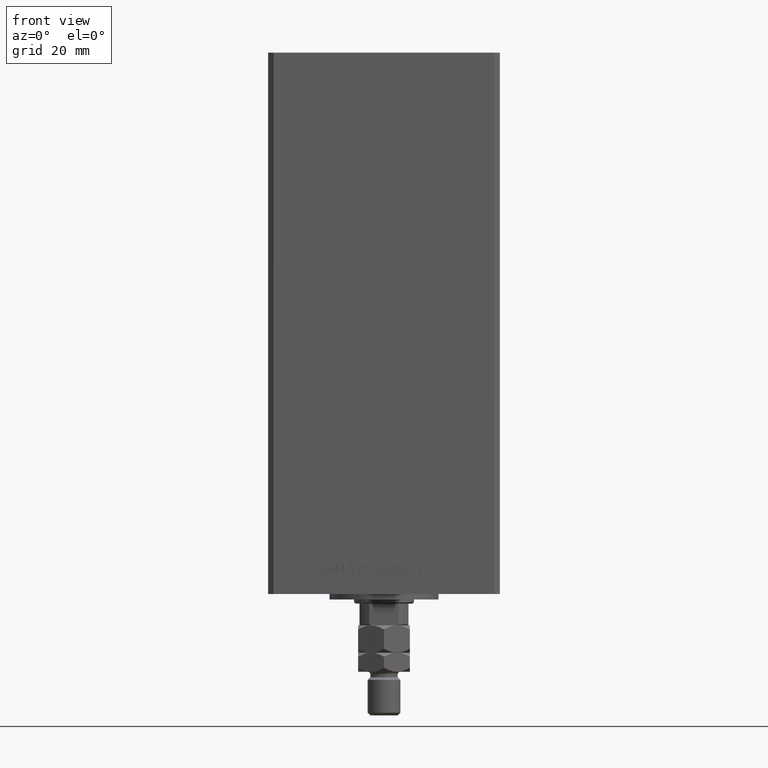
[diagram: clean part render]
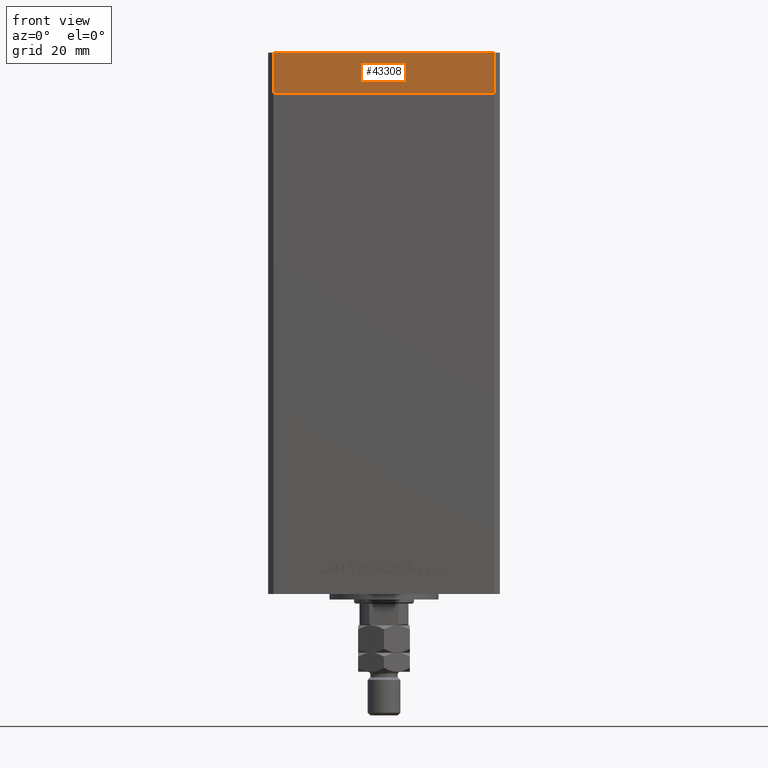
[diagram: same view with one face highlighted and labeled with its STEP entity id]
A machine part, front view. The second image highlights one B-rep face of the part: STEP entity #43308.
In plain terms, the highlighted planar face has unit normal (0, -1, 0).
Its self-contained STEP definition (entity closure, byte-faithful):
#463 = VERTEX_POINT ( 'NONE', #21534 ) ;
#1726 = LINE ( 'NONE', #48489, #32874 ) ;
#1769 = CARTESIAN_POINT ( 'NONE',  ( 40.50000000000000000, -37.50000000000000711, -15.00000000000000000 ) ) ;
#1901 = EDGE_CURVE ( 'NONE', #29263, #21288, #49501, .T. ) ;
#3256 = DIRECTION ( 'NONE',  ( 1.000000000000000000, 1.713307136767217096E-16, 0.000000000000000000 ) ) ;
#3756 = DIRECTION ( 'NONE',  ( 1.713307136767217096E-16, -1.000000000000000000, 0.000000000000000000 ) ) ;
#5109 = VECTOR ( 'NONE', #39020, 1000.000000000000000 ) ;
#7598 = PLANE ( 'NONE',  #21067 ) ;
#8283 = DIRECTION ( 'NONE',  ( 1.000000000000000000, 1.713307136767217096E-16, 0.000000000000000000 ) ) ;
#8799 = EDGE_CURVE ( 'NONE', #40688, #21288, #1726, .T. ) ;
#12847 = EDGE_LOOP ( 'NONE', ( #23098, #31493, #50421, #44032 ) ) ;
#18339 = DIRECTION ( 'NONE',  ( 1.000000000000000000, 1.713307136767217096E-16, 0.000000000000000000 ) ) ;
#21067 = AXIS2_PLACEMENT_3D ( 'NONE', #50508, #3756, #3256 ) ;
#21288 = VERTEX_POINT ( 'NONE', #35588 ) ;
#21534 = CARTESIAN_POINT ( 'NONE',  ( -40.49999999999999289, -37.50000000000002132, -15.00000000000000000 ) ) ;
#23098 = ORIENTED_EDGE ( 'NONE', *, *, #1901, .F. ) ;
#23190 = CARTESIAN_POINT ( 'NONE',  ( -40.49999999999999289, -37.50000000000002132, -15.00000000000000000 ) ) ;
#26726 = EDGE_CURVE ( 'NONE', #463, #29263, #27771, .T. ) ;
#27008 = FACE_OUTER_BOUND ( 'NONE', #12847, .T. ) ;
#27771 = LINE ( 'NONE', #23190, #5109 ) ;
#28864 = VECTOR ( 'NONE', #8283, 1000.000000000000000 ) ;
#29263 = VERTEX_POINT ( 'NONE', #35877 ) ;
#30839 = EDGE_CURVE ( 'NONE', #463, #40688, #50205, .T. ) ;
#31079 = VECTOR ( 'NONE', #18339, 1000.000000000000000 ) ;
#31493 = ORIENTED_EDGE ( 'NONE', *, *, #26726, .F. ) ;
#32874 = VECTOR ( 'NONE', #44664, 1000.000000000000000 ) ;
#35588 = CARTESIAN_POINT ( 'NONE',  ( 40.50000000000000000, -37.50000000000000711, 0.000000000000000000 ) ) ;
#35877 = CARTESIAN_POINT ( 'NONE',  ( -40.49999999999999289, -37.50000000000002132, 0.000000000000000000 ) ) ;
#39020 = DIRECTION ( 'NONE',  ( 0.000000000000000000, 0.000000000000000000, 1.000000000000000000 ) ) ;
#40688 = VERTEX_POINT ( 'NONE', #1769 ) ;
#43290 = CARTESIAN_POINT ( 'NONE',  ( -40.49999999999999289, -37.50000000000002132, -15.00000000000000000 ) ) ;
#43308 = ADVANCED_FACE ( 'NONE', ( #27008 ), #7598, .T. ) ;
#44032 = ORIENTED_EDGE ( 'NONE', *, *, #8799, .T. ) ;
#44664 = DIRECTION ( 'NONE',  ( 0.000000000000000000, 0.000000000000000000, 1.000000000000000000 ) ) ;
#48489 = CARTESIAN_POINT ( 'NONE',  ( 40.50000000000000000, -37.50000000000000711, -15.00000000000000000 ) ) ;
#49501 = LINE ( 'NONE', #49752, #31079 ) ;
#49752 = CARTESIAN_POINT ( 'NONE',  ( -40.49999999999999289, -37.50000000000002132, 0.000000000000000000 ) ) ;
#50205 = LINE ( 'NONE', #43290, #28864 ) ;
#50421 = ORIENTED_EDGE ( 'NONE', *, *, #30839, .T. ) ;
#50508 = CARTESIAN_POINT ( 'NONE',  ( -40.49999999999999289, -37.50000000000002132, -15.00000000000000000 ) ) ;